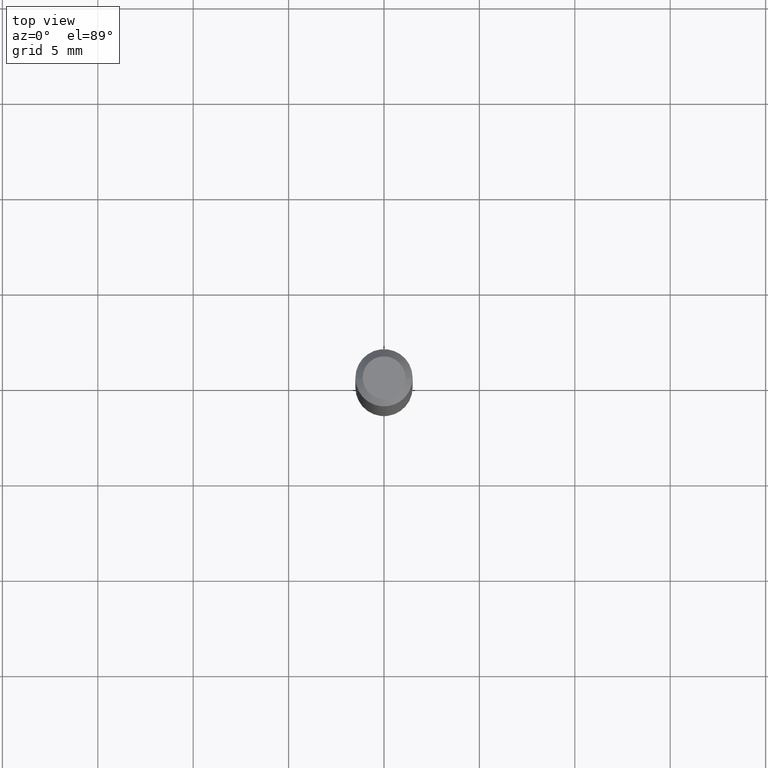
[diagram: clean part render]
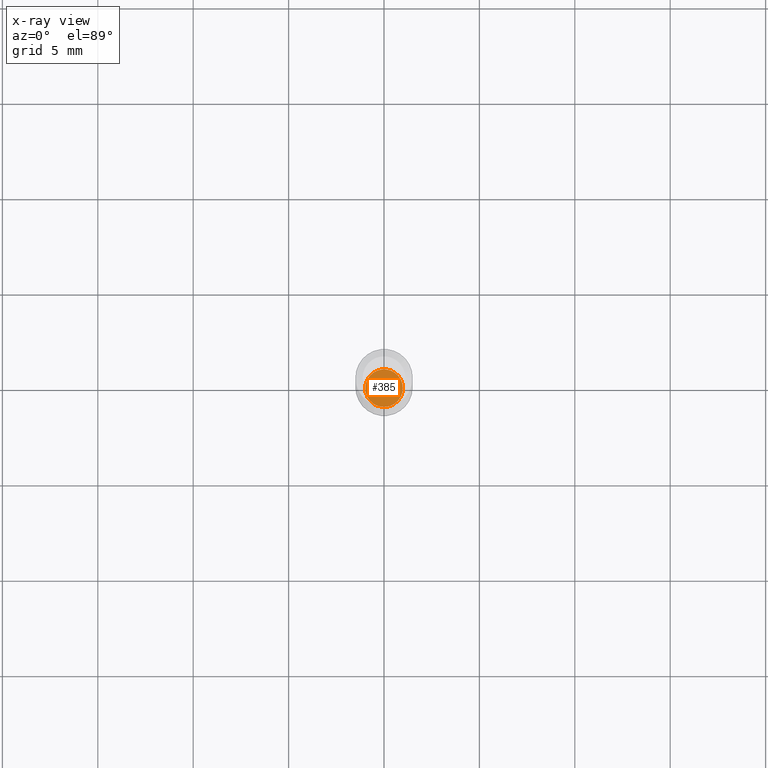
[diagram: x-ray — body ghosted, one internal face saturated and labeled with its STEP entity id]
A machine part, top view, then the same camera in x-ray: the body is ghosted and one INTERNAL B-rep face — a face not visible from any outside direction — is saturated and labeled: STEP entity #385.
In plain terms, the highlighted planar face has unit normal (-0, 0, 1).
Its self-contained STEP definition (entity closure, byte-faithful):
#1 = CARTESIAN_POINT ( 'NONE',  ( 3.061726945343791391E-29, -4.371334636231619274E-15, -1.252000000000000224 ) ) ;
#26 = AXIS2_PLACEMENT_3D ( 'NONE', #253, #407, #321 ) ;
#34 = AXIS2_PLACEMENT_3D ( 'NONE', #236, #239, #304 ) ;
#39 = ORIENTED_EDGE ( 'NONE', *, *, #147, .F. ) ;
#60 = CIRCLE ( 'NONE', #26, 0.03885000000000000259 ) ;
#84 = CIRCLE ( 'NONE', #448, 0.03885000000000000259 ) ;
#91 = VERTEX_POINT ( 'NONE', #129 ) ;
#101 = ORIENTED_EDGE ( 'NONE', *, *, #425, .F. ) ;
#128 = DIRECTION ( 'NONE',  ( -2.445468806185136597E-29, 3.491481338843145583E-15, 1.000000000000000000 ) ) ;
#129 = CARTESIAN_POINT ( 'NONE',  ( -0.03885000000000000259, -4.092639556214709577E-15, -1.252000000000000224 ) ) ;
#134 = DIRECTION ( 'NONE',  ( 1.000000000000000000, -6.982962677686256455E-15, 0.000000000000000000 ) ) ;
#147 = EDGE_CURVE ( 'NONE', #91, #274, #60, .T. ) ;
#156 = EDGE_LOOP ( 'NONE', ( #101, #39 ) ) ;
#236 = CARTESIAN_POINT ( 'NONE',  ( 3.061726945343791391E-29, -4.371334636231619274E-15, -1.252000000000000224 ) ) ;
#239 = DIRECTION ( 'NONE',  ( -2.438088387897960049E-29, 3.491481338843145188E-15, 1.000000000000000000 ) ) ;
#253 = CARTESIAN_POINT ( 'NONE',  ( 3.061726945343791391E-29, -4.371334636231619274E-15, -1.252000000000000224 ) ) ;
#274 = VERTEX_POINT ( 'NONE', #445 ) ;
#304 = DIRECTION ( 'NONE',  ( 1.000000000000000000, -6.982962677686265922E-15, 4.876176775795935793E-29 ) ) ;
#321 = DIRECTION ( 'NONE',  ( 1.000000000000000000, -6.982962677686256455E-15, 0.000000000000000000 ) ) ;
#343 = FACE_OUTER_BOUND ( 'NONE', #156, .T. ) ;
#374 = PLANE ( 'NONE',  #34 ) ;
#385 = ADVANCED_FACE ( 'NONE', ( #343 ), #374, .F. ) ;
#407 = DIRECTION ( 'NONE',  ( -2.445468806185136597E-29, 3.491481338843145583E-15, 1.000000000000000000 ) ) ;
#425 = EDGE_CURVE ( 'NONE', #274, #91, #84, .T. ) ;
#445 = CARTESIAN_POINT ( 'NONE',  ( 0.03885000000000000259, -4.642622736259730395E-15, -1.252000000000000224 ) ) ;
#448 = AXIS2_PLACEMENT_3D ( 'NONE', #1, #128, #134 ) ;